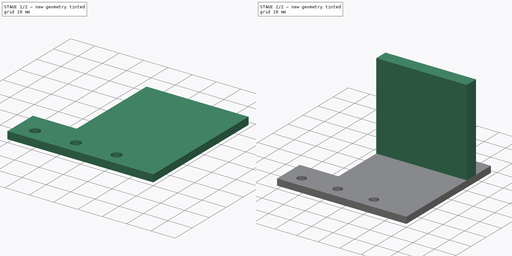
[diagram: build sequence overview — one tinted view per stage of 2, left to right]
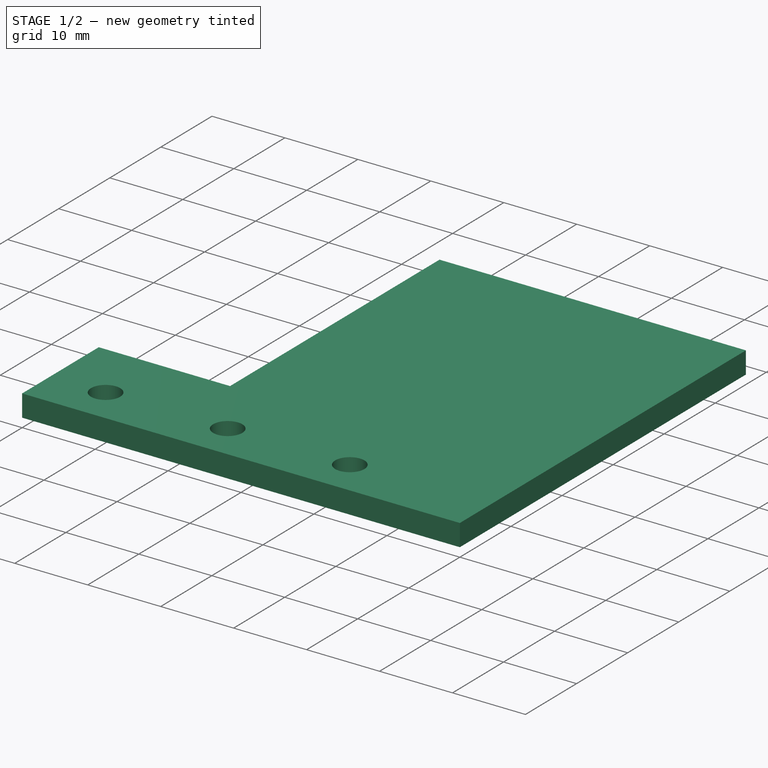
[diagram: stage 1 of 2 — iso view after this stage's code; geometry added in this stage tinted green]
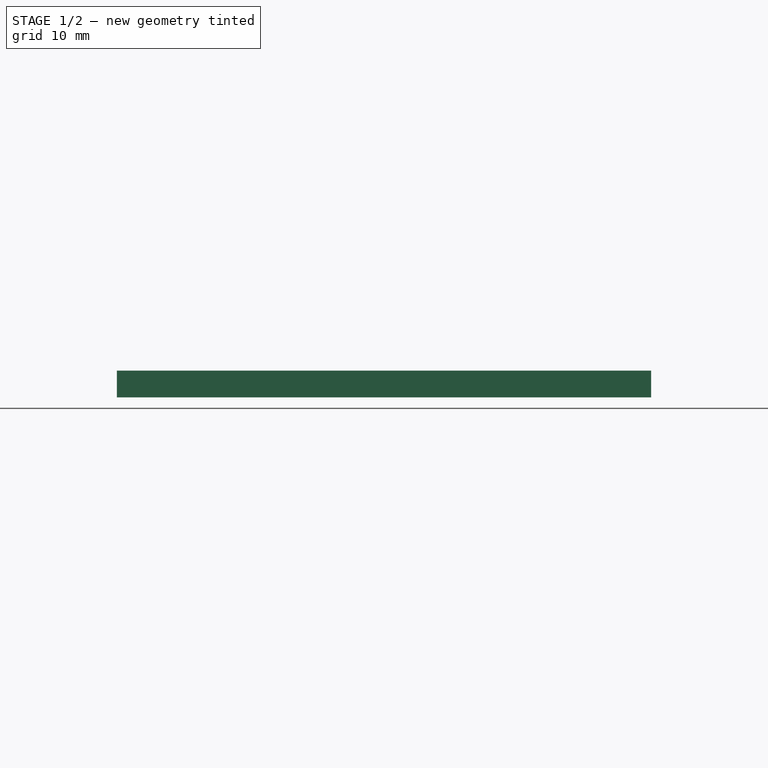
[diagram: stage 1 of 2 — front view after this stage's code; geometry added in this stage tinted green]
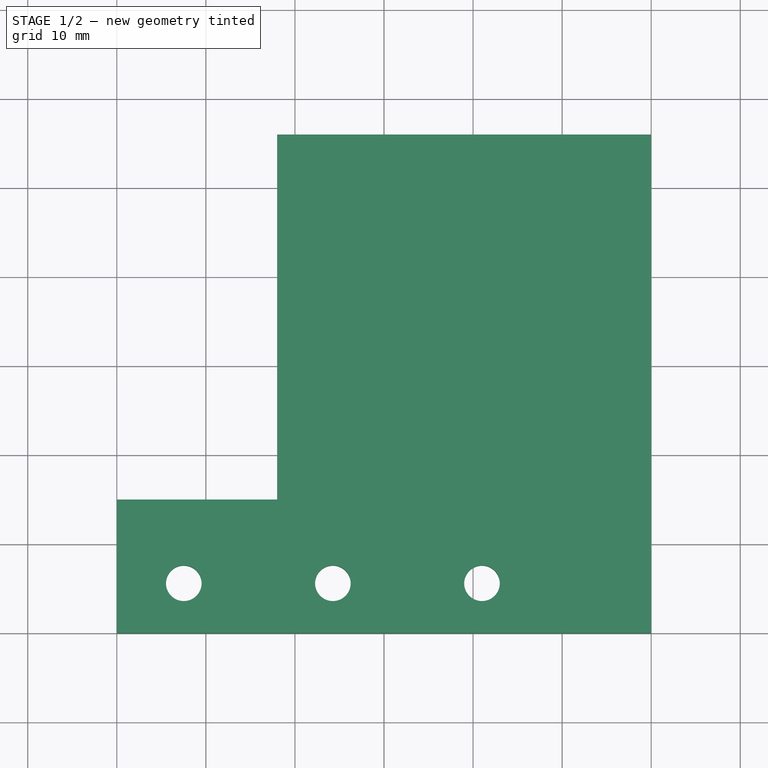
[diagram: stage 1 of 2 — top view after this stage's code; geometry added in this stage tinted green]
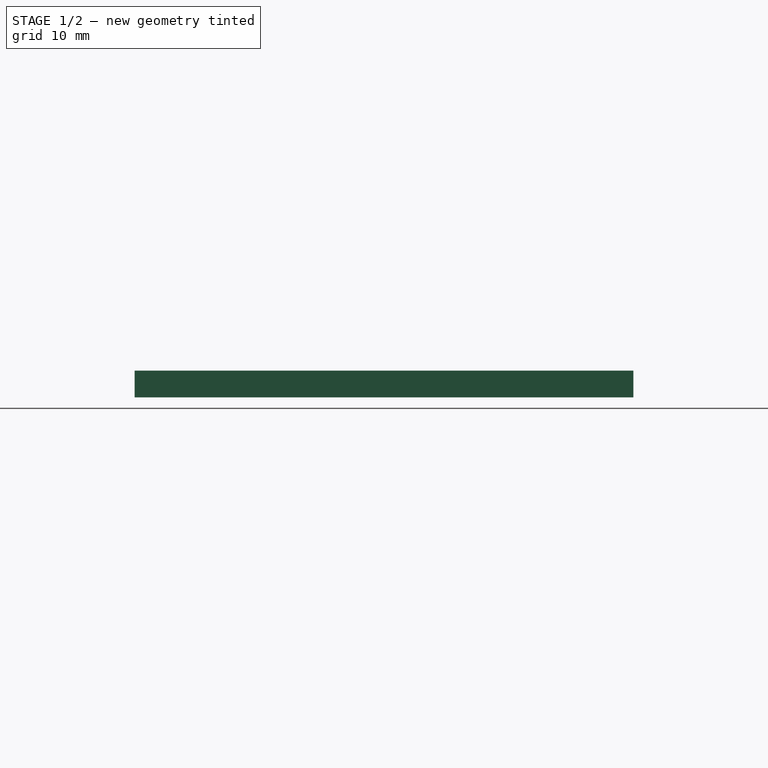
[diagram: stage 1 of 2 — right view after this stage's code; geometry added in this stage tinted green]
FCSTD DOCUMENT  (FreeCAD 0.16R6707 (Git))
Label: support_capteur_gauche
License: All rights reserved
LicenseURL: http://en.wikipedia.org/wiki/All_rights_reserved
objects: Sketcher::SketchObject×2, PartDesign::Pad×2
note: 6 computed .brp shape members not serialized (recipe doc carries the construction recipe); baked Part::Feature solids carry a one-line shape summary decoded from their .brp

FEATURE [Sketcher::SketchObject] Sketch
  sketch-geometry (9):
    g0: LineSegment StartX=0 StartY=0 StartZ=0 EndX=60 EndY=0 EndZ=0
    g1: LineSegment StartX=60 StartY=0 StartZ=0 EndX=60 EndY=56 EndZ=0
    g2: LineSegment StartX=60 StartY=56 StartZ=0 EndX=18 EndY=56 EndZ=0
    g3: LineSegment StartX=18 StartY=56 StartZ=0 EndX=18 EndY=15 EndZ=0
    g4: LineSegment StartX=18 StartY=15 StartZ=0 EndX=0 EndY=15 EndZ=0
    g5: LineSegment StartX=0 StartY=0 StartZ=0 EndX=0 EndY=15 EndZ=0
    g6: Circle CenterX=24.26 CenterY=5.6 CenterZ=0 NormalX=0 NormalY=0 NormalZ=1 Radius=2
    g7: Circle CenterX=41 CenterY=5.6 CenterZ=0 NormalX=0 NormalY=0 NormalZ=1 Radius=2
    g8: Circle CenterX=7.52 CenterY=5.6 CenterZ=0 NormalX=0 NormalY=0 NormalZ=1 Radius=2
  constraints (26):
    c: Coincident(g-1,g0)
    c: PointOnObject(g0,g-1)
    c: Coincident(g0,g1)
    c: Vertical(g1)
    c: Coincident(g1,g2)
    c: Horizontal(g2)
    c: Coincident(g2,g3)
    c: Vertical(g3)
    c: Coincident(g3,g4)
    c: Horizontal(g4)
    c: Coincident(g5,g-1)
    c: Coincident(g5,g4)
    c: Vertical(g5)
    c: Distance(g1) = 56
    c: Distance(g0) = 60
    c: DistanceY(g6,g7) = 0
    c: DistanceX(g6,g7) = 16.74
    c: DistanceY(g6) = 5.6
    c: Radius(g6) = 2
    c: Equal(g6,g7)
    c: DistanceX(g7,g0) = 19
    c: Radius(g8) = 2
    c: DistanceY(g6,g8) = 0
    c: DistanceX(g8,g6) = 16.74
    c: Distance(g4) = 18
    c: Distance(g5) = 15
FEATURE [PartDesign::Pad] Pad
  Length = 3
  Length2 = 100
  Sketch = -> Sketch
  Type = 0
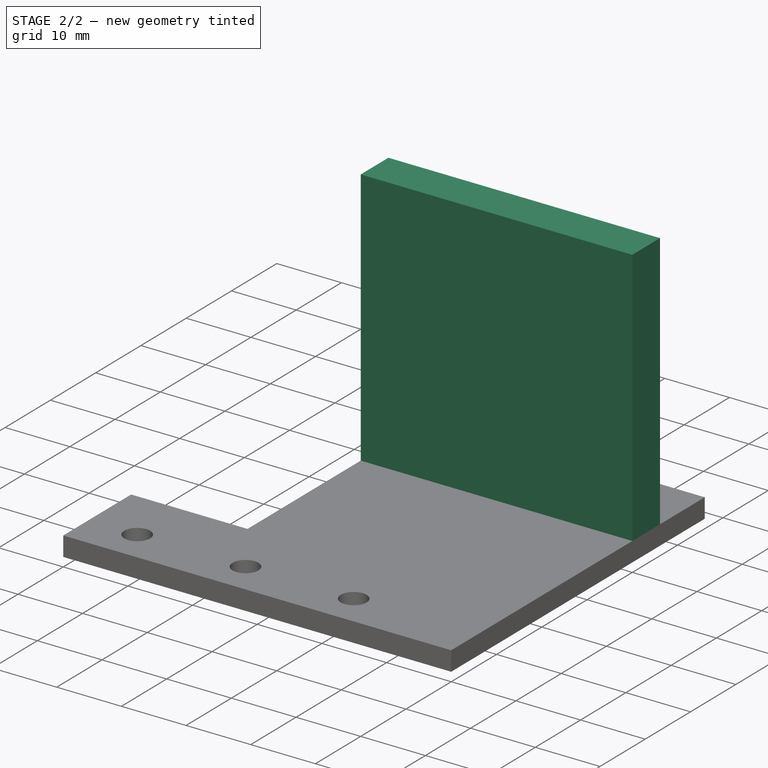
[diagram: stage 2 of 2 — iso view after this stage's code; geometry added in this stage tinted green]
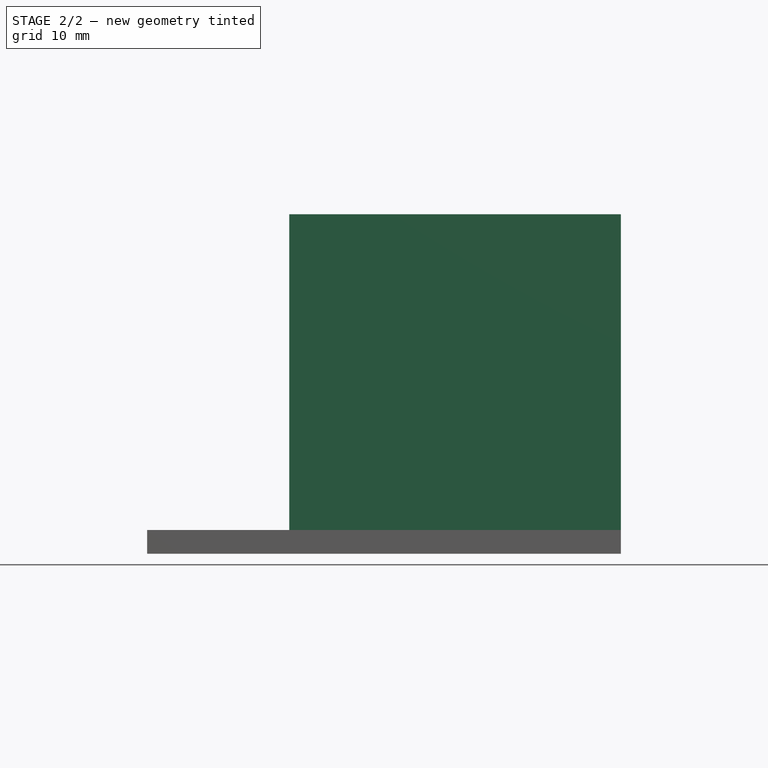
[diagram: stage 2 of 2 — front view after this stage's code; geometry added in this stage tinted green]
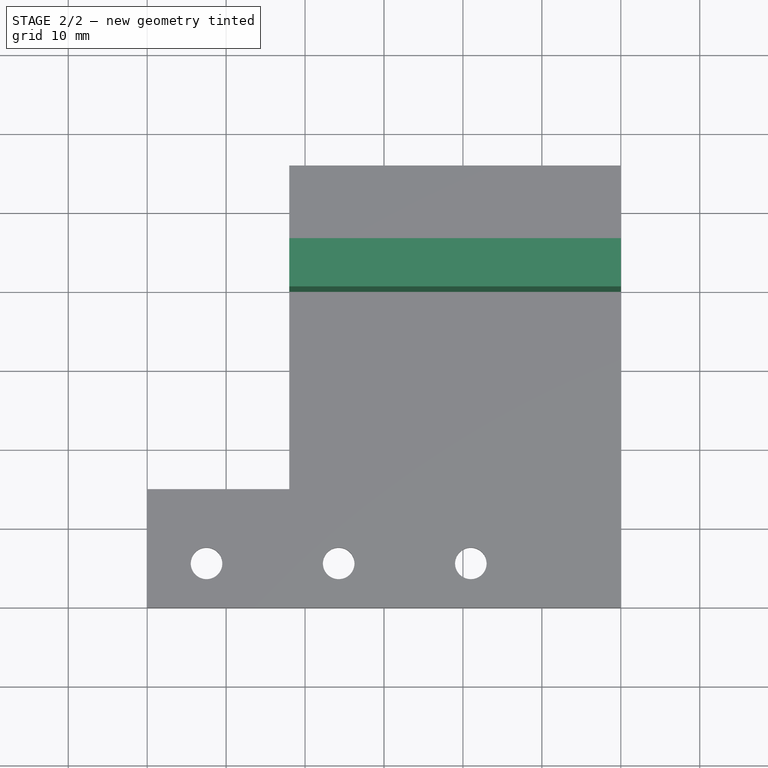
[diagram: stage 2 of 2 — top view after this stage's code; geometry added in this stage tinted green]
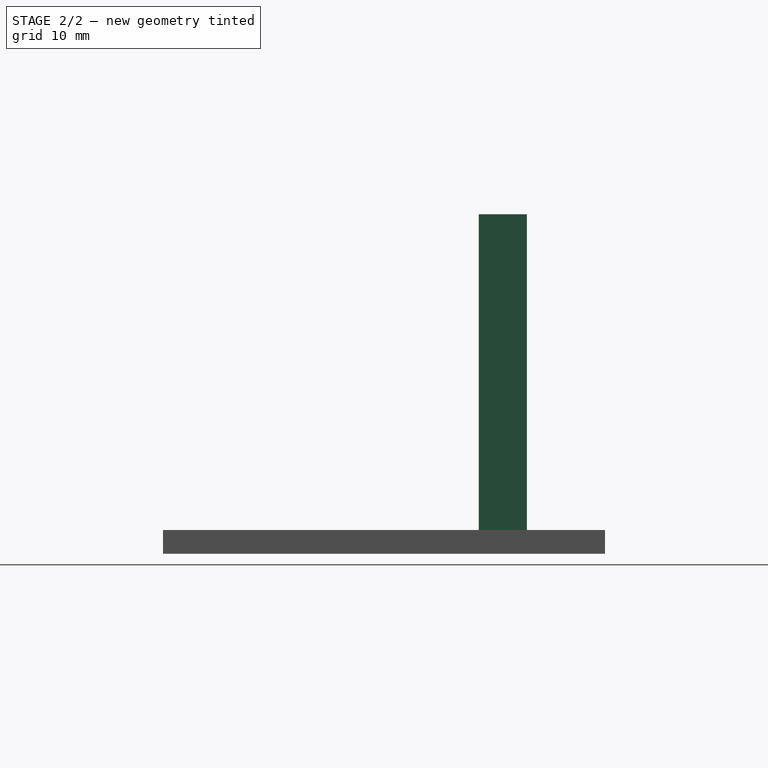
[diagram: stage 2 of 2 — right view after this stage's code; geometry added in this stage tinted green]
FEATURE [Sketcher::SketchObject] Sketch001
  Placement = pos=(0,0,3) rot=(0,0,1;0rad)
  Support = -> Pad [Face11]
  sketch-geometry (4):
    g0: LineSegment StartX=18 StartY=46.1048 StartZ=0 EndX=60 EndY=46.1048 EndZ=0
    g1: LineSegment StartX=60 StartY=46.1048 StartZ=0 EndX=60 EndY=40 EndZ=0
    g2: LineSegment StartX=60 StartY=40 StartZ=0 EndX=18 EndY=40 EndZ=0
    g3: LineSegment StartX=18 StartY=40 StartZ=0 EndX=18 EndY=46.1048 EndZ=0
  constraints (11):
    c: Coincident(g0,g1)
    c: Coincident(g1,g2)
    c: Coincident(g2,g3)
    c: Coincident(g3,g0)
    c: Horizontal(g0)
    c: Horizontal(g2)
    c: Vertical(g1)
    c: Vertical(g3)
    c: DistanceX(g2) = 18
    c: DistanceY(g2) = 40
    c: Distance(g2) = 42
FEATURE [PartDesign::Pad] Pad001
  Length = 40
  Length2 = 100
  Sketch = -> Sketch001
  Type = 0
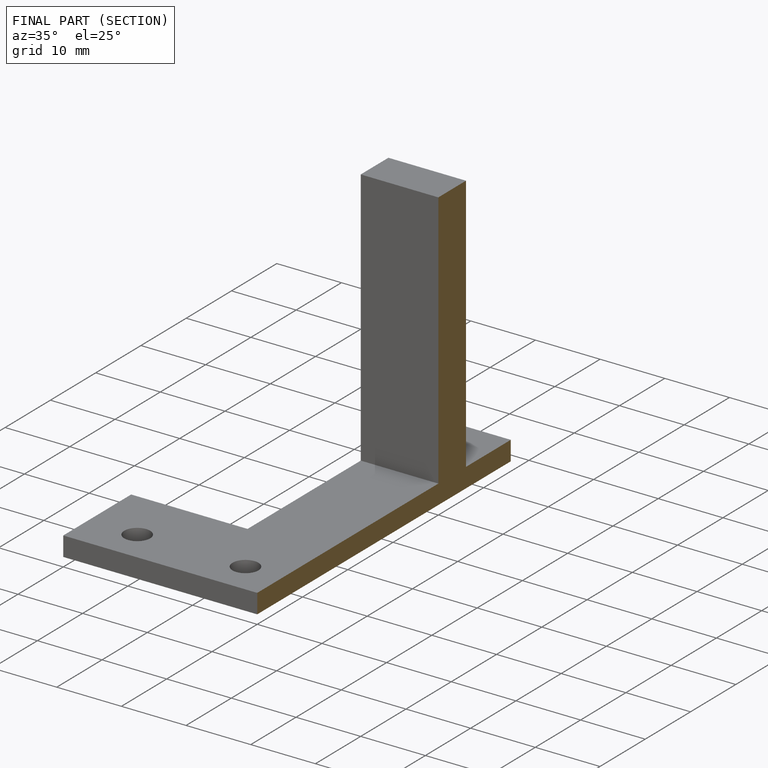
[diagram: finished part — half-section view (interior)]
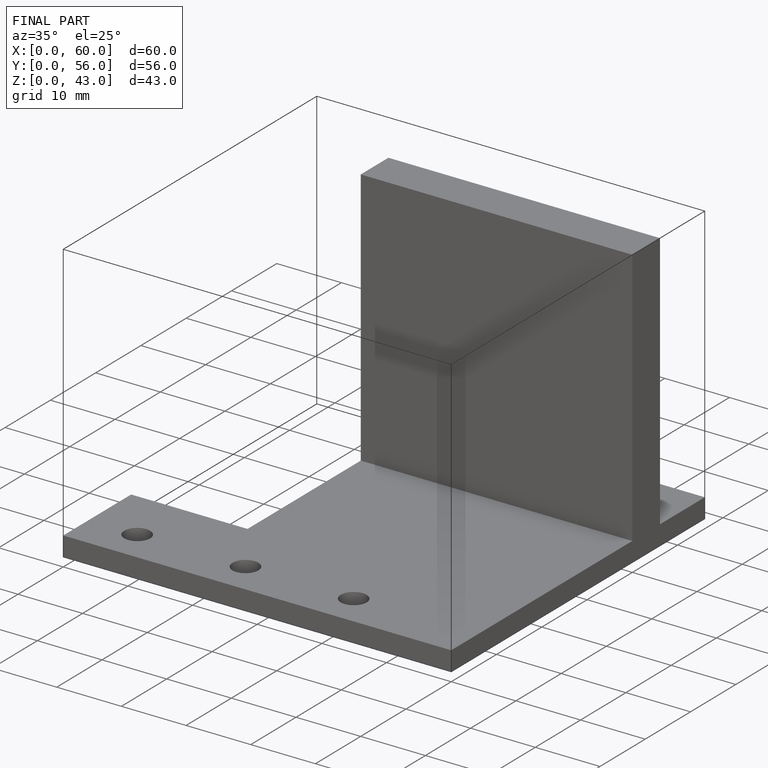
[diagram: finished part — iso view with bounding-box wireframe]
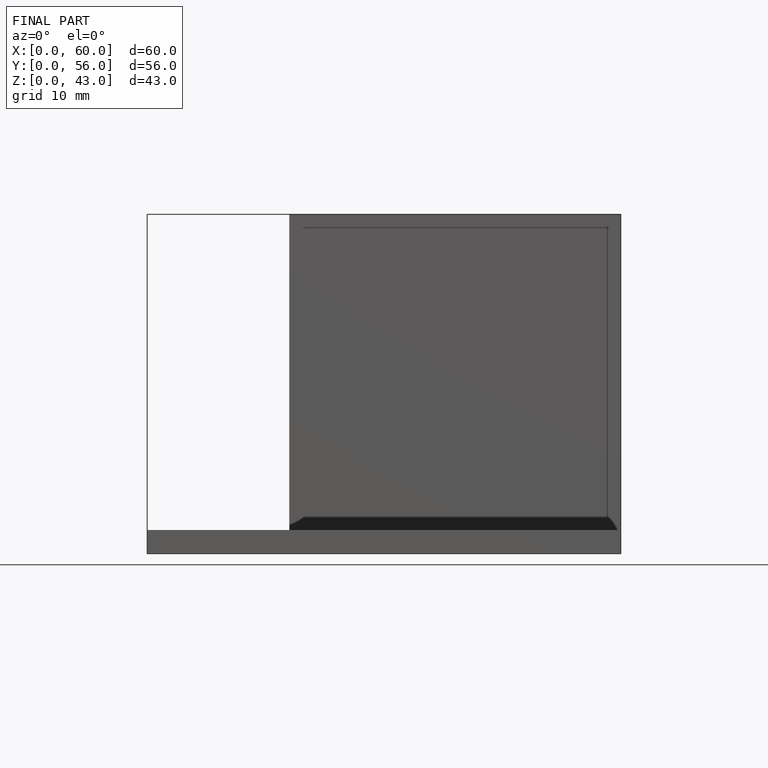
[diagram: finished part — front view with bounding-box wireframe]
